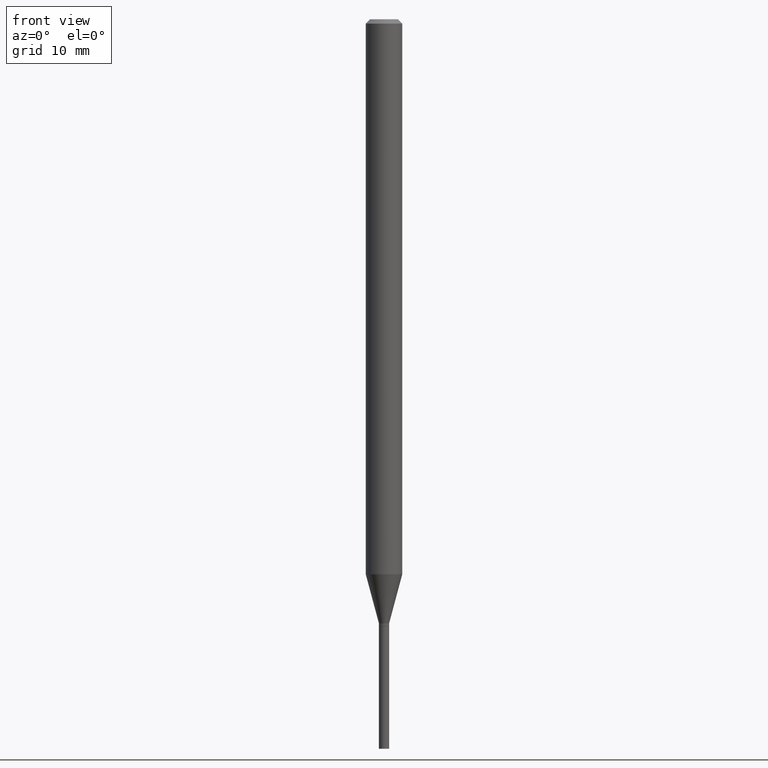
[diagram: clean part render]
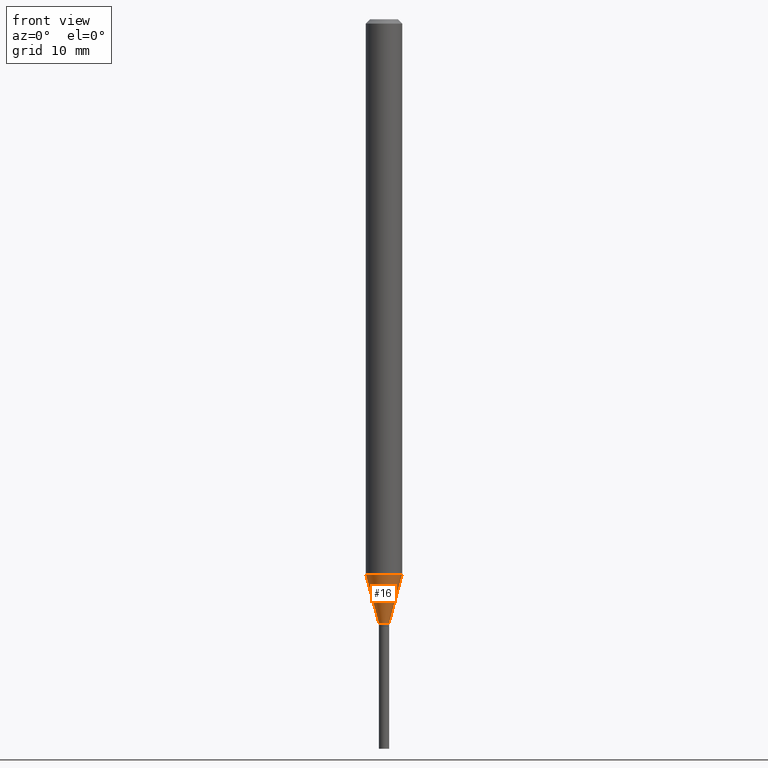
[diagram: same view with one face highlighted and labeled with its STEP entity id]
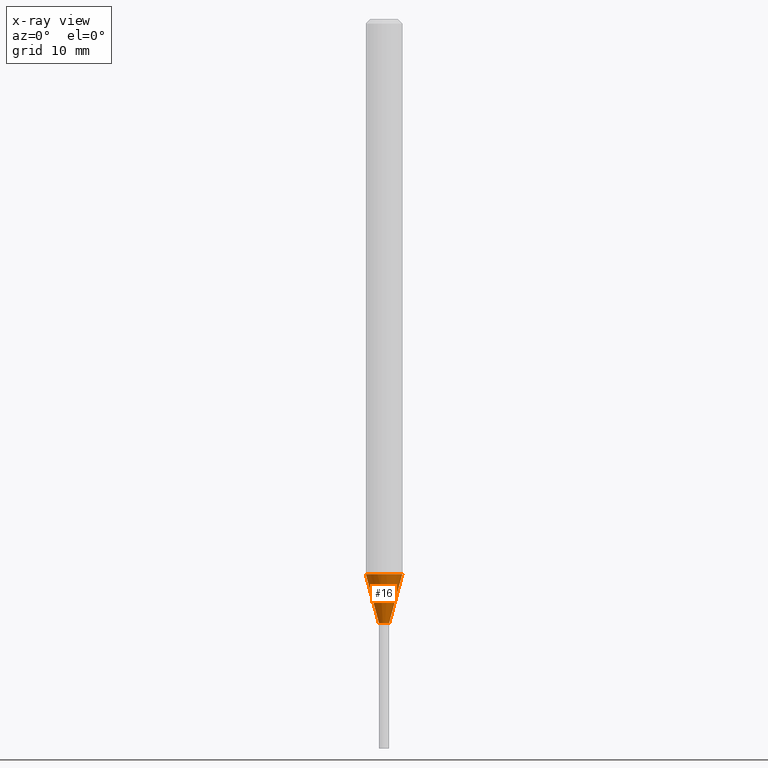
[diagram: x-ray of the same camera — body ghosted, the highlighted face saturated]
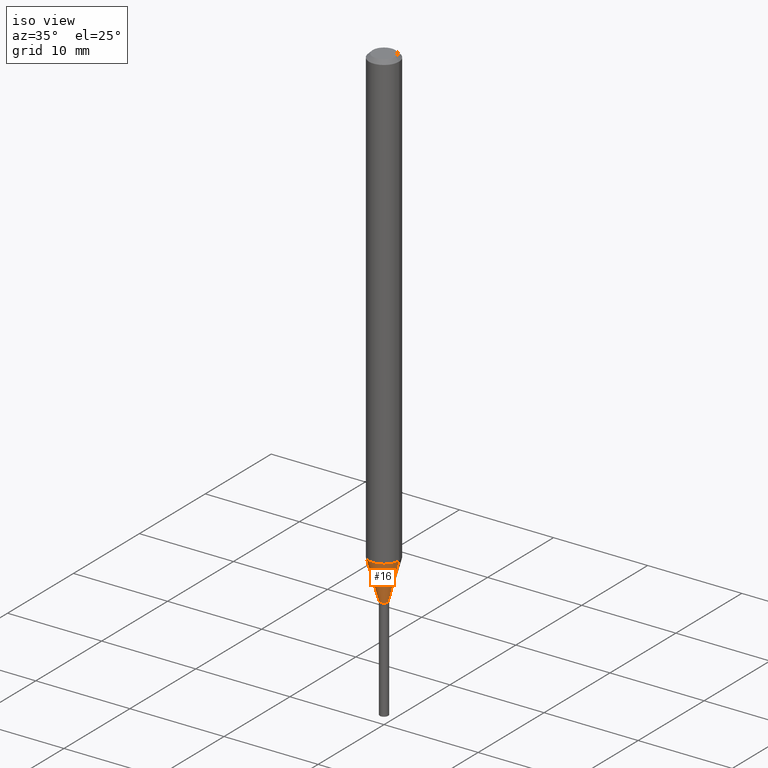
[diagram: same view with one face highlighted and labeled with its STEP entity id]
A machine part, front view. The second image highlights one B-rep face of the part: STEP entity #16.
The next image is the same camera in x-ray: the body ghosted, the highlighted face saturated — about 0% of this face is hidden behind the body in this view.
A second angle (iso view) of the same face is appended — the face is thin or edge-on in the first view.
In plain terms, the highlighted conical surface has half-angle 15 deg.
Its self-contained STEP definition (entity closure, byte-faithful):
#9 = EDGE_LOOP ( 'NONE', ( #336, #258, #212, #264 ) ) ;
#16 = ADVANCED_FACE ( 'NONE', ( #334 ), #108, .T. ) ;
#19 = DIRECTION ( 'NONE',  ( 0.2588190451025212391, 1.565188264969622362E-15, 0.9659258262890679791 ) ) ;
#37 = CARTESIAN_POINT ( 'NONE',  ( 0.01749999999999992187, -7.349568218264821903E-15, -2.069999999999999840 ) ) ;
#41 = DIRECTION ( 'NONE',  ( 1.000000000000000000, -6.982962677686262766E-15, 0.000000000000000000 ) ) ;
#48 = CIRCLE ( 'NONE', #387, 0.01749999999999992187 ) ;
#52 = DIRECTION ( 'NONE',  ( 1.000000000000000000, -6.982962677686280910E-15, 0.000000000000000000 ) ) ;
#62 = EDGE_CURVE ( 'NONE', #169, #443, #48, .T. ) ;
#101 = VECTOR ( 'NONE', #19, 39.37007874015748854 ) ;
#108 = CONICAL_SURFACE ( 'NONE', #395, 0.01749999999999992187, 0.2617993877991499629 ) ;
#115 = CARTESIAN_POINT ( 'NONE',  ( 4.651422806317884527E-29, -6.640999012644456422E-15, -1.902057713659400573 ) ) ;
#149 = CARTESIAN_POINT ( 'NONE',  ( 5.062120428803232890E-29, -7.227366371405311920E-15, -2.069999999999999840 ) ) ;
#169 = VERTEX_POINT ( 'NONE', #276 ) ;
#173 = VECTOR ( 'NONE', #362, 39.37007874015748854 ) ;
#178 = EDGE_CURVE ( 'NONE', #443, #185, #191, .T. ) ;
#185 = VERTEX_POINT ( 'NONE', #320 ) ;
#191 = LINE ( 'NONE', #344, #101 ) ;
#212 = ORIENTED_EDGE ( 'NONE', *, *, #178, .T. ) ;
#242 = AXIS2_PLACEMENT_3D ( 'NONE', #115, #401, #41 ) ;
#247 = VERTEX_POINT ( 'NONE', #436 ) ;
#255 = LINE ( 'NONE', #363, #173 ) ;
#258 = ORIENTED_EDGE ( 'NONE', *, *, #62, .T. ) ;
#264 = ORIENTED_EDGE ( 'NONE', *, *, #434, .F. ) ;
#276 = CARTESIAN_POINT ( 'NONE',  ( -0.01749999999999992187, -6.649965597720844633E-15, -2.069999999999999840 ) ) ;
#308 = DIRECTION ( 'NONE',  ( 1.000000000000000000, -6.982962677686280910E-15, 0.000000000000000000 ) ) ;
#320 = CARTESIAN_POINT ( 'NONE',  ( 0.06250000000000001388, -7.077434179999848880E-15, -1.902057713659400573 ) ) ;
#334 = FACE_OUTER_BOUND ( 'NONE', #9, .T. ) ;
#336 = ORIENTED_EDGE ( 'NONE', *, *, #417, .F. ) ;
#342 = DIRECTION ( 'NONE',  ( -2.445468806185136597E-29, 3.491481338843145583E-15, 1.000000000000000000 ) ) ;
#344 = CARTESIAN_POINT ( 'NONE',  ( 0.01749999999999992187, -7.349568218264821903E-15, -2.069999999999999840 ) ) ;
#362 = DIRECTION ( 'NONE',  ( -0.2588190451025212391, 5.211531920934549464E-15, 0.9659258262890679791 ) ) ;
#363 = CARTESIAN_POINT ( 'NONE',  ( -0.01749999999999992187, -7.103021392647295460E-15, -2.069999999999999840 ) ) ;
#378 = CARTESIAN_POINT ( 'NONE',  ( 5.062120428803232890E-29, -7.227366371405311920E-15, -2.069999999999999840 ) ) ;
#387 = AXIS2_PLACEMENT_3D ( 'NONE', #378, #454, #52 ) ;
#395 = AXIS2_PLACEMENT_3D ( 'NONE', #149, #342, #308 ) ;
#401 = DIRECTION ( 'NONE',  ( -2.445468806185136597E-29, 3.491481338843145583E-15, 1.000000000000000000 ) ) ;
#417 = EDGE_CURVE ( 'NONE', #169, #247, #255, .T. ) ;
#434 = EDGE_CURVE ( 'NONE', #247, #185, #452, .T. ) ;
#436 = CARTESIAN_POINT ( 'NONE',  ( -0.06250000000000001388, -6.196909802794394595E-15, -1.902057713659400573 ) ) ;
#443 = VERTEX_POINT ( 'NONE', #37 ) ;
#452 = CIRCLE ( 'NONE', #242, 0.06250000000000000000 ) ;
#454 = DIRECTION ( 'NONE',  ( -2.445468806185136597E-29, 3.491481338843145583E-15, 1.000000000000000000 ) ) ;